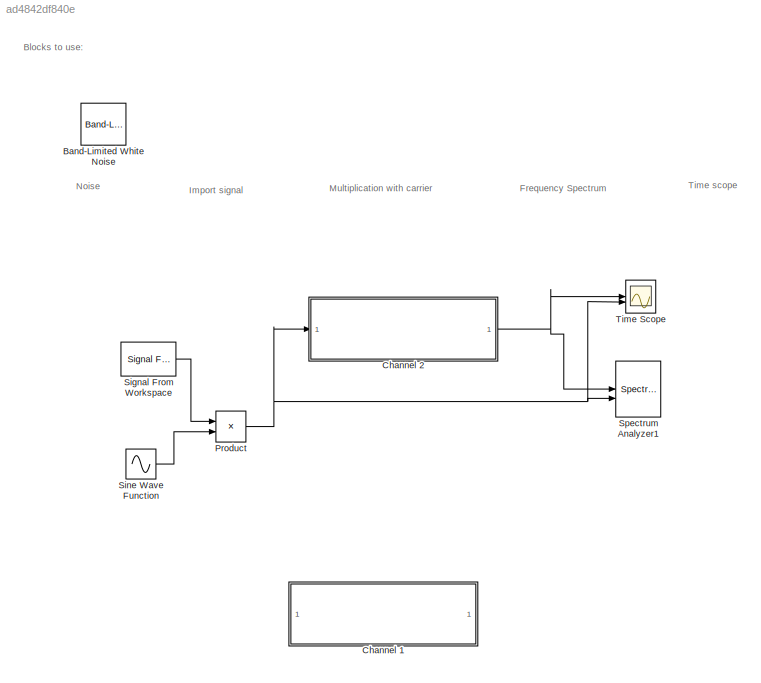
MODEL slx_ad4842df840e
KIND model
CONFIG AbsTol = auto
CONFIG EnableMultiTasking = off
CONFIG FixedStep = 1e-9
CONFIG MaxStep = auto
CONFIG MinStep = auto
CONFIG RelTol = 1e-3
CONFIG SampleTimeConstraint = Unconstrained
CONFIG SolverName = FixedStepAuto
CONFIG StartTime = 0.0
CONFIG StopTime = inf
BLOCK [Reference] Band-Limited White Noise  REF=simulink/Sources/Band-Limited
White Noise
  Commented = on
  SourceBlock = simulink/Sources/Band-Limited\nWhite Noise
  SourceType = Band-Limited White Noise.
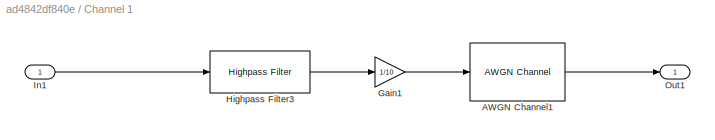
BLOCK [SubSystem] Channel 1 
  Commented = on
  Permissions = NoReadOrWrite
BLOCK [Reference] Channel 1 /AWGN Channel1  REF=commchan3/AWGN
Channel
  SourceBlock = commchan3/AWGN\nChannel
  SourceType = AWGN Channel
  UserDataPersistent = on
BLOCK [Gain] Channel 1 /Gain1
  Gain = 1/10
BLOCK [Reference] Channel 1 /Highpass Filter3  REF=dspfdesign/Highpass Filter
  SourceBlock = dspfdesign/Highpass Filter
  SourceType = dsp.simulink.HighpassFilter
BLOCK [Inport] Channel 1 /In1
BLOCK [Outport] Channel 1 /Out1
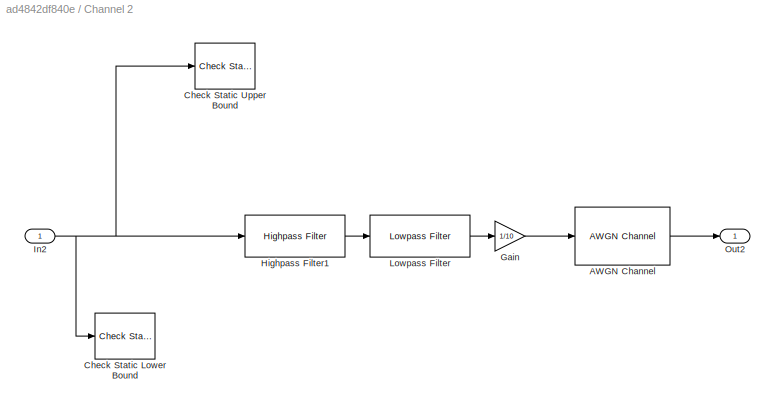
BLOCK [SubSystem] Channel 2
BLOCK [Reference] Channel 2/AWGN Channel  REF=commchan3/AWGN
Channel
  SourceBlock = commchan3/AWGN\nChannel
  SourceType = AWGN Channel
  UserDataPersistent = on
BLOCK [Reference] Channel 2/Check Static Lower Bound  REF=simulink/Model
Verification/Check Static 
Lower Bound
  Description = -1 < u
  SourceBlock = simulink/Model\nVerification/Check Static \nLower Bound
  SourceType = Checks_SMin
BLOCK [Reference] Channel 2/Check Static Upper Bound  REF=simulink/Model
Verification/Check Static 
Upper Bound
  Description = u <= 1
  SourceBlock = simulink/Model\nVerification/Check Static \nUpper Bound
  SourceType = Checks_SMax
BLOCK [Gain] Channel 2/Gain
  Gain = 1/10
BLOCK [Reference] Channel 2/Highpass Filter1  REF=dspfdesign/Highpass Filter
  SourceBlock = dspfdesign/Highpass Filter
  SourceType = dsp.simulink.HighpassFilter
BLOCK [Inport] Channel 2/In2
BLOCK [Reference] Channel 2/Lowpass Filter  REF=dspfdesign/Lowpass Filter
  SourceBlock = dspfdesign/Lowpass Filter
  SourceType = dsp.simulink.LowpassFilter
BLOCK [Outport] Channel 2/Out2
BLOCK [Product] Product
BLOCK [Reference] Signal From Workspace  REF=dspsrcs4/Signal From
Workspace
  SourceBlock = dspsrcs4/Signal From\nWorkspace
  SourceType = Signal From Workspace
BLOCK [Sin] Sine Wave Function
  Frequency = Fc*2*pi
  SampleTime = 1/fs
BLOCK [SpectrumAnalyzer] Spectrum Analyzer1
  AveragingMethod = Exponential
  DefaultConfigurationName = spbscopes.SpectrumAnalyzerBlockCfg
  ForgettingFactor = 1
  FrequencyInputRBWFromPort = 0
  FrequencyInputRBWPort = 0
  FrequencyVectorFromPort = 0
  FrequencyVectorPort = 0
  GraphicalSettings = {"GraphicalSettings":{"Style":{"BackgroundColor":[0.12941176470588237,0.12941176470588237,0.12941176470588237],"AxesColor":[0,0,0],"LabelsColor":[0.6862745098039216,0.6862745098039216,0.6862745098039216],"PreserveColors":false,"Visible":[true,true],"LineStyle":["-","-"],"LineColor":[[1,1,0.06666666666666667],[0.07450980392156863,0.6235294117647059,1]],"LineWidth":[0.5,1.5],"Marker":["none","none"]...<+966ch>
  IsFrequencyInputMode = 0
  Method = Welch
  NumInputPorts = 2
  SampleRate = 10000000
  ScopeFrameLocation = window
  ScopeSpecificationString = spbscopes.SpectrumAnalyzerBlockCfg('CurrentConfiguration', extmgr.ConfigurationSet(extmgr.Configuration('Core','General UI',true),extmgr.Configuration('Core','Source UI',true),extmgr.Configuration('Sources','WiredSimulink',true),extmgr.Configuration('Visuals','Spectrum',true,'AxesProperties',struct('Color',{[0 0 0],[0 0 0]},'XColor',{[0.686274509803922 0.686274509803922 0.686274509803922],[0.68627...<+1898ch>
  SelectedToolstripTab = spectrumAnalyzerToolstrip.estimationTab
  Span = 20000000
  StartFrequency = -10000000
  StopFrequency = 10000000
  WasSavedAsWebScope = on
  WindowPosition = [1.000000,1.000000,1920.000000,1057.000000,]
  YLimits = [-116.25791856,25.18408551]
BLOCK [Scope] Time Scope
  DefaultConfigurationName = spbscopes.TimeScopeBlockCfg
  Floating = off
  NumInputPorts = 2
  ScopeSpecificationString = spbscopes.TimeScopeBlockCfg('CurrentConfiguration', extmgr.ConfigurationSet(extmgr.Configuration('Core','General UI',true,'FigureColor',[0.156862745098039 0.156862745098039 0.156862745098039]),extmgr.Configuration('Core','Source UI',true),extmgr.Configuration('Sources','WiredSimulink',true),extmgr.Configuration('Visuals','Time Domain',true,'DisplayPropertyDefaults',struct('MinYLimReal','-1.18882',...<+1480ch>
  UserDataPersistent = on
ANNOTATION (root): Blocks to use:
ANNOTATION (root): Frequency Spectrum
ANNOTATION (root): Import signal
ANNOTATION (root): Multiplication with carrier
ANNOTATION (root): Noise
ANNOTATION (root): Time scope
LINE Channel 1 /AWGN Channel1:1 -> Channel 1 /Out1:1
LINE Channel 1 /Gain1:1 -> Channel 1 /AWGN Channel1:1
LINE Channel 1 /Highpass Filter3:1 -> Channel 1 /Gain1:1
LINE Channel 1 /In1:1 -> Channel 1 /Highpass Filter3:1
LINE Channel 2/AWGN Channel:1 -> Channel 2/Out2:1
LINE Channel 2/Gain:1 -> Channel 2/AWGN Channel:1
LINE Channel 2/Highpass Filter1:1 -> Channel 2/Lowpass Filter:1
NET Channel 2/In2:1 -> Channel 2/Check Static Lower Bound:1, Channel 2/Check Static Upper Bound:1, Channel 2/Highpass Filter1:1
LINE Channel 2/Lowpass Filter:1 -> Channel 2/Gain:1
NET Channel 2:1 -> Spectrum Analyzer1:1, Time Scope:1
NET Product:1 -> Channel 2:1, Spectrum Analyzer1:2, Time Scope:2
LINE Signal From Workspace:1 -> Product:1
LINE Sine Wave Function:1 -> Product:2
note: NET lines group one-source signal fan-out (src -> all destinations, sorted); 1:1 wires keep LINE
